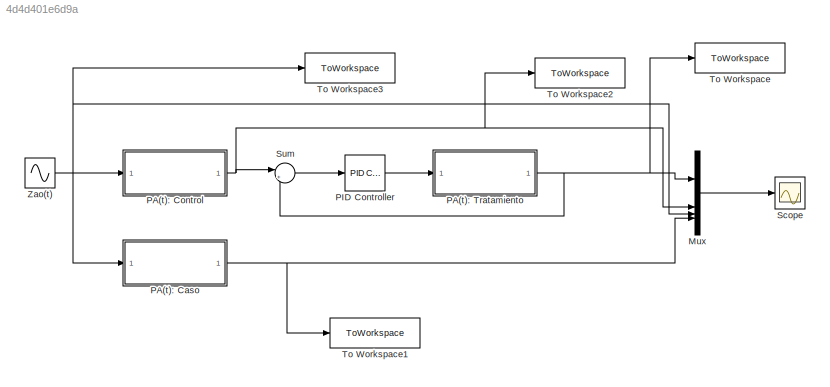
MODEL slx_4d4d401e6d9a
KIND model
CONFIG AbsTol = auto
CONFIG EnableMultiTasking = off
CONFIG FixedStep = auto
CONFIG MaxStep = 1e-3
CONFIG MinStep = auto
CONFIG RelTol = 1e-3
CONFIG SampleTimeConstraint = Unconstrained
CONFIG SolverName = ode45
CONFIG StartTime = 0.0
CONFIG StopTime = 10.0
BLOCK [Mux] Mux
  DisplayOption = bar
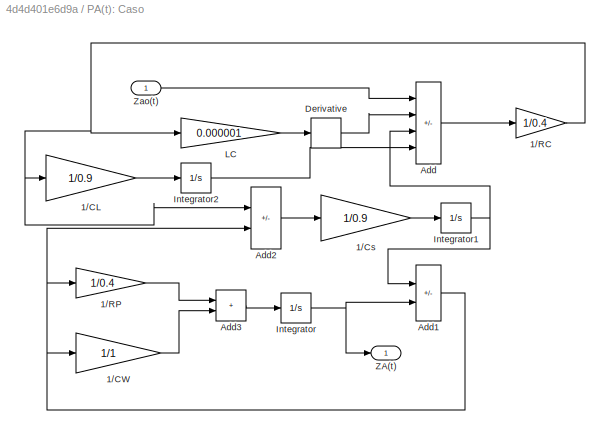
BLOCK [SubSystem] PA(t): Caso
BLOCK [Gain] PA(t): Caso/1//CL
  Gain = 1/0.9
BLOCK [Gain] PA(t): Caso/1//CW
  Gain = 1/1
BLOCK [Gain] PA(t): Caso/1//Cs
  Gain = 1/0.9
BLOCK [Gain] PA(t): Caso/1//RC
  Gain = 1/0.4
BLOCK [Gain] PA(t): Caso/1//RP
  Gain = 1/0.4
BLOCK [Sum] PA(t): Caso/Add
  IconShape = rectangular
  Inputs = +---
BLOCK [Sum] PA(t): Caso/Add1
  IconShape = rectangular
  Inputs = +-
BLOCK [Sum] PA(t): Caso/Add2
  IconShape = rectangular
  Inputs = +-
BLOCK [Sum] PA(t): Caso/Add3
  IconShape = rectangular
BLOCK [Derivative] PA(t): Caso/Derivative
BLOCK [Integrator] PA(t): Caso/Integrator
BLOCK [Integrator] PA(t): Caso/Integrator1
BLOCK [Integrator] PA(t): Caso/Integrator2
BLOCK [Gain] PA(t): Caso/LC
  Gain = 0.000001
BLOCK [Outport] PA(t): Caso/ZA(t)
BLOCK [Inport] PA(t): Caso/Zao(t)
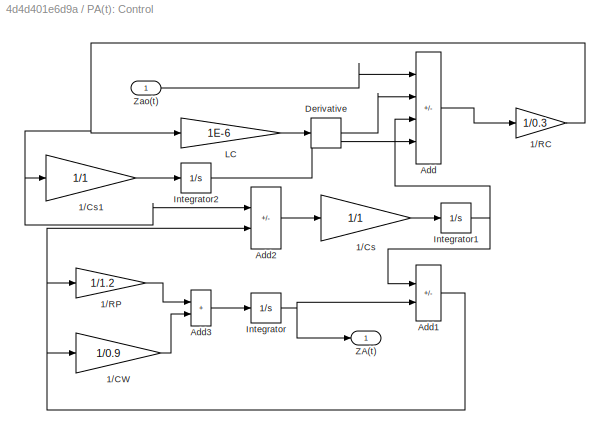
BLOCK [SubSystem] PA(t): Control
BLOCK [Gain] PA(t): Control/1//CW
  Gain = 1/0.9
BLOCK [Gain] PA(t): Control/1//Cs
  Gain = 1/1
BLOCK [Gain] PA(t): Control/1//Cs1
  Gain = 1/1
BLOCK [Gain] PA(t): Control/1//RC
  Gain = 1/0.3
BLOCK [Gain] PA(t): Control/1//RP
  Gain = 1/1.2
BLOCK [Sum] PA(t): Control/Add
  IconShape = rectangular
  Inputs = +---
BLOCK [Sum] PA(t): Control/Add1
  IconShape = rectangular
  Inputs = +-
BLOCK [Sum] PA(t): Control/Add2
  IconShape = rectangular
  Inputs = +-
BLOCK [Sum] PA(t): Control/Add3
  IconShape = rectangular
BLOCK [Derivative] PA(t): Control/Derivative
BLOCK [Integrator] PA(t): Control/Integrator
BLOCK [Integrator] PA(t): Control/Integrator1
BLOCK [Integrator] PA(t): Control/Integrator2
BLOCK [Gain] PA(t): Control/LC
  Gain = 1E-6
BLOCK [Outport] PA(t): Control/ZA(t)
BLOCK [Inport] PA(t): Control/Zao(t)
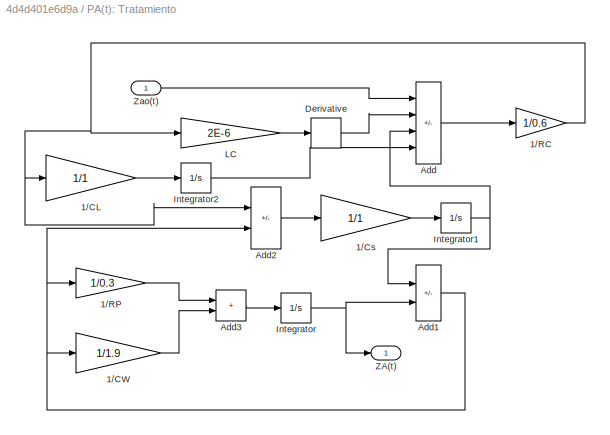
BLOCK [SubSystem] PA(t): Tratamiento
BLOCK [Gain] PA(t): Tratamiento/1//CL
  Gain = 1/1
BLOCK [Gain] PA(t): Tratamiento/1//CW
  Gain = 1/1.9
BLOCK [Gain] PA(t): Tratamiento/1//Cs
  Gain = 1/1
BLOCK [Gain] PA(t): Tratamiento/1//RC
  Gain = 1/0.6
BLOCK [Gain] PA(t): Tratamiento/1//RP
  Gain = 1/0.3
BLOCK [Sum] PA(t): Tratamiento/Add
  IconShape = rectangular
  Inputs = +---
BLOCK [Sum] PA(t): Tratamiento/Add1
  IconShape = rectangular
  Inputs = +-
BLOCK [Sum] PA(t): Tratamiento/Add2
  IconShape = rectangular
  Inputs = +-
BLOCK [Sum] PA(t): Tratamiento/Add3
  IconShape = rectangular
BLOCK [Derivative] PA(t): Tratamiento/Derivative
BLOCK [Integrator] PA(t): Tratamiento/Integrator
BLOCK [Integrator] PA(t): Tratamiento/Integrator1
BLOCK [Integrator] PA(t): Tratamiento/Integrator2
BLOCK [Gain] PA(t): Tratamiento/LC
  Gain = 2E-6
BLOCK [Outport] PA(t): Tratamiento/ZA(t)
BLOCK [Inport] PA(t): Tratamiento/Zao(t)
BLOCK [Reference] PID Controller  REF=slpidlib/PID Controller
  LibrarySourceBlock = simulink/Continuous/PID Controller
  SourceBlock = slpidlib/PID Controller
  SourceType = PID 1dof
BLOCK [Scope] Scope
  Floating = off
  NumInputPorts = 1
  ScopeSpecificationString = Simulink.scopes.TimeScopeBlockCfg('CurrentConfiguration', extmgr.ConfigurationSet(extmgr.Configuration('Core','General UI',true,'FigureColor',[1 1 1]),extmgr.Configuration('Core','Source UI',true),extmgr.Configuration('Sources','WiredSimulink',true),extmgr.Configuration('Visuals','Time Domain',true,'SerializedDisplays',{struct('MinYLimReal','-1.25','MaxYLimReal','1.25','YLabelReal','','MinYLimMag'...<+1665ch>
BLOCK [Sum] Sum
  Inputs = |+-
BLOCK [ToWorkspace] To Workspace
  FixptAsFi = on
  MaxDataPoints = inf
  SampleTime = -1
  VariableName = Zaz
BLOCK [ToWorkspace] To Workspace1
  FixptAsFi = on
  MaxDataPoints = inf
  SampleTime = -1
  VariableName = Zab
BLOCK [ToWorkspace] To Workspace2
  FixptAsFi = on
  MaxDataPoints = inf
  SampleTime = -1
  VariableName = Zay
BLOCK [ToWorkspace] To Workspace3
  FixptAsFi = on
  MaxDataPoints = inf
  SampleTime = -1
  VariableName = Zax
BLOCK [Sin] Zao(t)
  Frequency = pi
LINE Mux:1 -> Scope:1
LINE PA(t): Caso/1//CL:1 -> PA(t): Caso/Integrator2:1
LINE PA(t): Caso/1//CW:1 -> PA(t): Caso/Add3:2
LINE PA(t): Caso/1//Cs:1 -> PA(t): Caso/Integrator1:1
NET PA(t): Caso/1//RC:1 -> PA(t): Caso/1//CL:1, PA(t): Caso/Add2:1, PA(t): Caso/LC:1
LINE PA(t): Caso/1//RP:1 -> PA(t): Caso/Add3:1
NET PA(t): Caso/Add1:1 -> PA(t): Caso/1//CW:1, PA(t): Caso/1//RP:1, PA(t): Caso/Add2:2
LINE PA(t): Caso/Add2:1 -> PA(t): Caso/1//Cs:1
LINE PA(t): Caso/Add3:1 -> PA(t): Caso/Integrator:1
LINE PA(t): Caso/Add:1 -> PA(t): Caso/1//RC:1
LINE PA(t): Caso/Derivative:1 -> PA(t): Caso/Add:2
NET PA(t): Caso/Integrator1:1 -> PA(t): Caso/Add1:1, PA(t): Caso/Add:3
LINE PA(t): Caso/Integrator2:1 -> PA(t): Caso/Add:4
NET PA(t): Caso/Integrator:1 -> PA(t): Caso/Add1:2, PA(t): Caso/ZA(t):1
LINE PA(t): Caso/LC:1 -> PA(t): Caso/Derivative:1
LINE PA(t): Caso/Zao(t):1 -> PA(t): Caso/Add:1
NET PA(t): Caso:1 -> Mux:4, To Workspace1:1
LINE PA(t): Control/1//CW:1 -> PA(t): Control/Add3:2
LINE PA(t): Control/1//Cs1:1 -> PA(t): Control/Integrator2:1
LINE PA(t): Control/1//Cs:1 -> PA(t): Control/Integrator1:1
NET PA(t): Control/1//RC:1 -> PA(t): Control/1//Cs1:1, PA(t): Control/Add2:1, PA(t): Control/LC:1
LINE PA(t): Control/1//RP:1 -> PA(t): Control/Add3:1
NET PA(t): Control/Add1:1 -> PA(t): Control/1//CW:1, PA(t): Control/1//RP:1, PA(t): Control/Add2:2
LINE PA(t): Control/Add2:1 -> PA(t): Control/1//Cs:1
LINE PA(t): Control/Add3:1 -> PA(t): Control/Integrator:1
LINE PA(t): Control/Add:1 -> PA(t): Control/1//RC:1
LINE PA(t): Control/Derivative:1 -> PA(t): Control/Add:2
NET PA(t): Control/Integrator1:1 -> PA(t): Control/Add1:1, PA(t): Control/Add:3
LINE PA(t): Control/Integrator2:1 -> PA(t): Control/Add:4
NET PA(t): Control/Integrator:1 -> PA(t): Control/Add1:2, PA(t): Control/ZA(t):1
LINE PA(t): Control/LC:1 -> PA(t): Control/Derivative:1
LINE PA(t): Control/Zao(t):1 -> PA(t): Control/Add:1
NET PA(t): Control:1 -> Mux:2, Sum:1, To Workspace2:1
LINE PA(t): Tratamiento/1//CL:1 -> PA(t): Tratamiento/Integrator2:1
LINE PA(t): Tratamiento/1//CW:1 -> PA(t): Tratamiento/Add3:2
LINE PA(t): Tratamiento/1//Cs:1 -> PA(t): Tratamiento/Integrator1:1
NET PA(t): Tratamiento/1//RC:1 -> PA(t): Tratamiento/1//CL:1, PA(t): Tratamiento/Add2:1, PA(t): Tratamiento/LC:1
LINE PA(t): Tratamiento/1//RP:1 -> PA(t): Tratamiento/Add3:1
NET PA(t): Tratamiento/Add1:1 -> PA(t): Tratamiento/1//CW:1, PA(t): Tratamiento/1//RP:1, PA(t): Tratamiento/Add2:2
LINE PA(t): Tratamiento/Add2:1 -> PA(t): Tratamiento/1//Cs:1
LINE PA(t): Tratamiento/Add3:1 -> PA(t): Tratamiento/Integrator:1
LINE PA(t): Tratamiento/Add:1 -> PA(t): Tratamiento/1//RC:1
LINE PA(t): Tratamiento/Derivative:1 -> PA(t): Tratamiento/Add:2
NET PA(t): Tratamiento/Integrator1:1 -> PA(t): Tratamiento/Add1:1, PA(t): Tratamiento/Add:3
LINE PA(t): Tratamiento/Integrator2:1 -> PA(t): Tratamiento/Add:4
NET PA(t): Tratamiento/Integrator:1 -> PA(t): Tratamiento/Add1:2, PA(t): Tratamiento/ZA(t):1
LINE PA(t): Tratamiento/LC:1 -> PA(t): Tratamiento/Derivative:1
LINE PA(t): Tratamiento/Zao(t):1 -> PA(t): Tratamiento/Add:1
NET PA(t): Tratamiento:1 -> Mux:1, Sum:2, To Workspace:1
LINE PID Controller:1 -> PA(t): Tratamiento:1
LINE Sum:1 -> PID Controller:1
NET Zao(t):1 -> Mux:3, PA(t): Caso:1, PA(t): Control:1, To Workspace3:1
note: NET lines group one-source signal fan-out (src -> all destinations, sorted); 1:1 wires keep LINE
